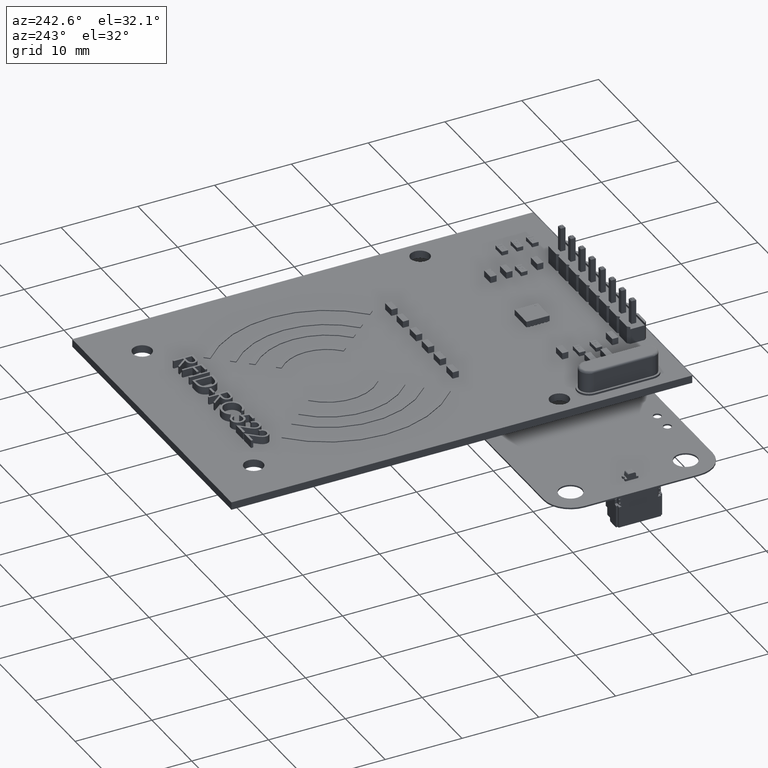
[diagram: clean part render]
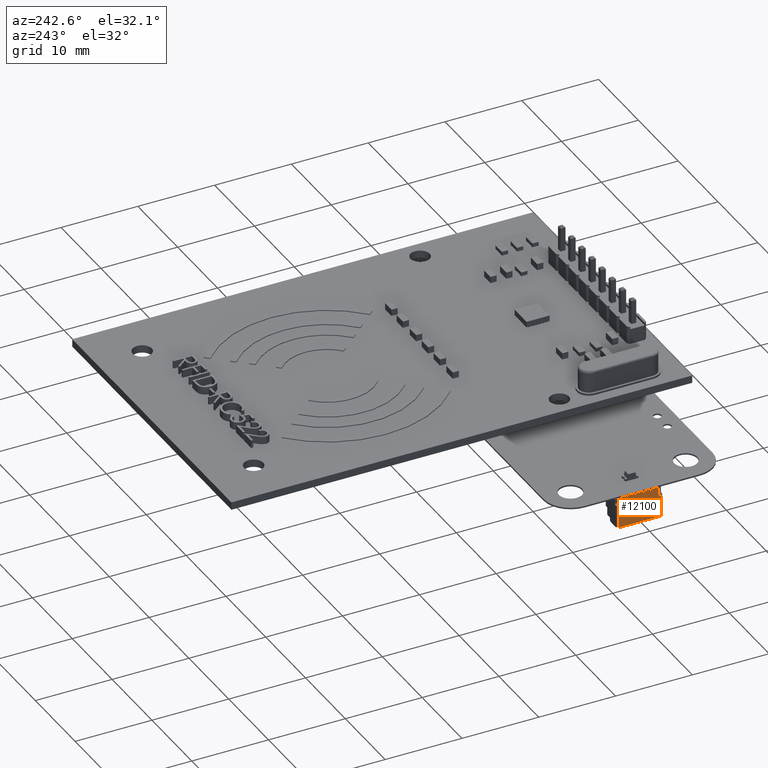
[diagram: same view with one face highlighted and labeled with its STEP entity id]
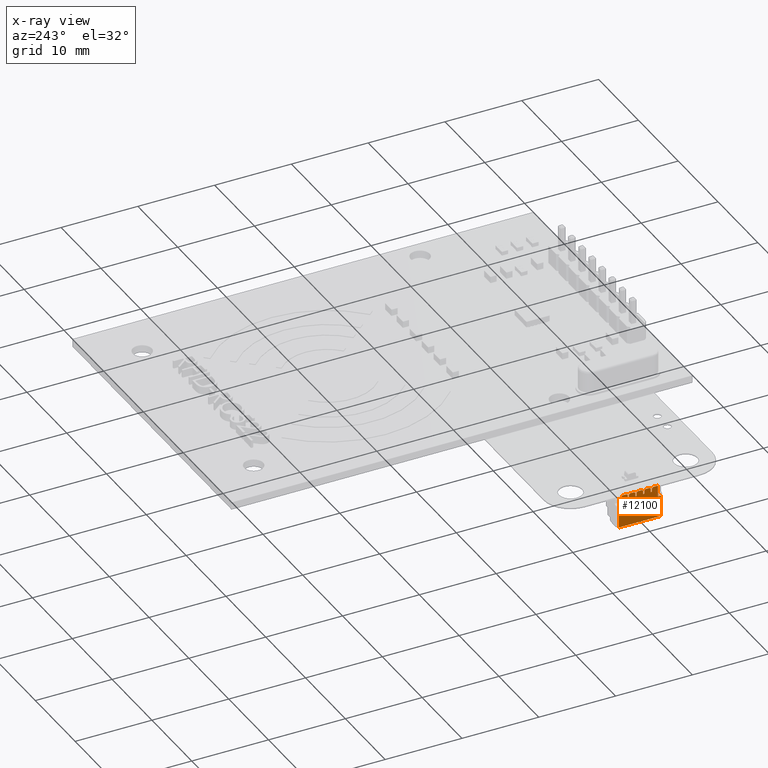
[diagram: x-ray of the same camera — body ghosted, the highlighted face saturated]
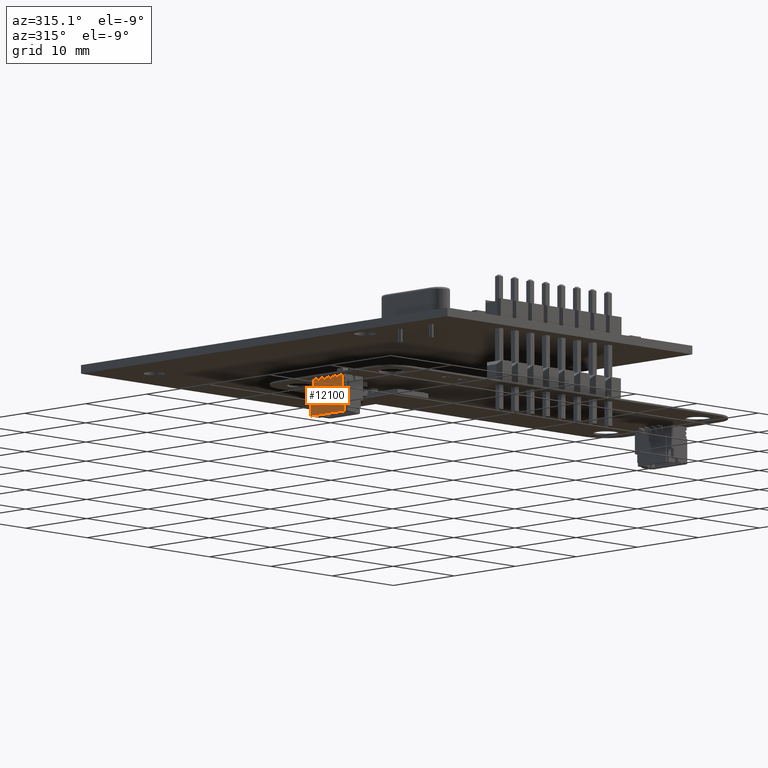
[diagram: same view with one face highlighted and labeled with its STEP entity id]
A machine part, auxiliary view. The second image highlights one B-rep face of the part: STEP entity #12100.
The next image is the same camera in x-ray: the body ghosted, the highlighted face saturated — about 0% of this face is hidden behind the body in this view.
A second angle (auxiliary view) of the same face is appended — the face is thin or edge-on in the first view.
In plain terms, the highlighted planar face has unit normal (1, -0, 0).
Its self-contained STEP definition (entity closure, byte-faithful):
#12100 = ADVANCED_FACE('',(#12101),#12359,.F.);
#12101 = FACE_BOUND('',#12102,.T.);
#12102 = EDGE_LOOP('',(#12103,#12113,#12121,#12129,#12137,#12145,#12153,
    #12161,#12169,#12177,#12185,#12193,#12201,#12209,#12217,#12225,
    #12233,#12241,#12249,#12257,#12265,#12273,#12281,#12289,#12297,
    #12305,#12313,#12321,#12329,#12337,#12345,#12353));
#12103 = ORIENTED_EDGE('',*,*,#12104,.F.);
#12104 = EDGE_CURVE('',#12105,#12107,#12109,.T.);
#12105 = VERTEX_POINT('',#12106);
#12106 = CARTESIAN_POINT('',(2.35,1.588675134595,-1.45));
#12107 = VERTEX_POINT('',#12108);
#12108 = CARTESIAN_POINT('',(2.75,1.588675134595,-1.45));
#12109 = LINE('',#12110,#12111);
#12110 = CARTESIAN_POINT('',(2.5,1.588675134595,-1.45));
#12111 = VECTOR('',#12112,1.);
#12112 = DIRECTION('',(1.,-0.,-0.));
#12113 = ORIENTED_EDGE('',*,*,#12114,.T.);
#12114 = EDGE_CURVE('',#12105,#12115,#12117,.T.);
#12115 = VERTEX_POINT('',#12116);
#12116 = CARTESIAN_POINT('',(2.35,0.1,-1.45));
#12117 = LINE('',#12118,#12119);
#12118 = CARTESIAN_POINT('',(2.35,0.1,-1.45));
#12119 = VECTOR('',#12120,1.);
#12120 = DIRECTION('',(0.,-1.,0.));
#12121 = ORIENTED_EDGE('',*,*,#12122,.T.);
#12122 = EDGE_CURVE('',#12115,#12123,#12125,.T.);
#12123 = VERTEX_POINT('',#12124);
#12124 = CARTESIAN_POINT('',(1.725,1.E-01,-1.45));
#12125 = LINE('',#12126,#12127);
#12126 = CARTESIAN_POINT('',(3.,0.1,-1.45));
#12127 = VECTOR('',#12128,1.);
#12128 = DIRECTION('',(-1.,-0.,-0.));
#12129 = ORIENTED_EDGE('',*,*,#12130,.F.);
#12130 = EDGE_CURVE('',#12131,#12123,#12133,.T.);
#12131 = VERTEX_POINT('',#12132);
#12132 = CARTESIAN_POINT('',(1.575,0.25,-1.45));
#12133 = LINE('',#12134,#12135);
#12134 = CARTESIAN_POINT('',(2.3625,-0.5375,-1.45));
#12135 = VECTOR('',#12136,1.);
#12136 = DIRECTION('',(0.707106781187,-0.707106781187,0.));
#12137 = ORIENTED_EDGE('',*,*,#12138,.F.);
#12138 = EDGE_CURVE('',#12139,#12131,#12141,.T.);
#12139 = VERTEX_POINT('',#12140);
#12140 = CARTESIAN_POINT('',(1.575,0.7,-1.45));
#12141 = LINE('',#12142,#12143);
#12142 = CARTESIAN_POINT('',(1.575,0.1,-1.45));
#12143 = VECTOR('',#12144,1.);
#12144 = DIRECTION('',(0.,-1.,0.));
#12145 = ORIENTED_EDGE('',*,*,#12146,.F.);
#12146 = EDGE_CURVE('',#12147,#12139,#12149,.T.);
#12147 = VERTEX_POINT('',#12148);
#12148 = CARTESIAN_POINT('',(1.425,0.7,-1.45));
#12149 = LINE('',#12150,#12151);
#12150 = CARTESIAN_POINT('',(3.,0.7,-1.45));
#12151 = VECTOR('',#12152,1.);
#12152 = DIRECTION('',(1.,0.,-0.));
#12153 = ORIENTED_EDGE('',*,*,#12154,.T.);
#12154 = EDGE_CURVE('',#12147,#12155,#12157,.T.);
#12155 = VERTEX_POINT('',#12156);
#12156 = CARTESIAN_POINT('',(1.425,0.25,-1.45));
#12157 = LINE('',#12158,#12159);
#12158 = CARTESIAN_POINT('',(1.425,0.1,-1.45));
#12159 = VECTOR('',#12160,1.);
#12160 = DIRECTION('',(0.,-1.,0.));
#12161 = ORIENTED_EDGE('',*,*,#12162,.T.);
#12162 = EDGE_CURVE('',#12155,#12163,#12165,.T.);
#12163 = VERTEX_POINT('',#12164);
#12164 = CARTESIAN_POINT('',(1.275,0.1,-1.45));
#12165 = LINE('',#12166,#12167);
#12166 = CARTESIAN_POINT('',(2.1375,0.9625,-1.45));
#12167 = VECTOR('',#12168,1.);
#12168 = DIRECTION('',(-0.707106781187,-0.707106781187,0.));
#12169 = ORIENTED_EDGE('',*,*,#12170,.T.);
#12170 = EDGE_CURVE('',#12163,#12171,#12173,.T.);
#12171 = VERTEX_POINT('',#12172);
#12172 = CARTESIAN_POINT('',(0.725,1.E-01,-1.45));
#12173 = LINE('',#12174,#12175);
#12174 = CARTESIAN_POINT('',(3.,0.1,-1.45));
#12175 = VECTOR('',#12176,1.);
#12176 = DIRECTION('',(-1.,-0.,-0.));
#12177 = ORIENTED_EDGE('',*,*,#12178,.F.);
#12178 = EDGE_CURVE('',#12179,#12171,#12181,.T.);
#12179 = VERTEX_POINT('',#12180);
#12180 = CARTESIAN_POINT('',(0.575,0.25,-1.45));
#12181 = LINE('',#12182,#12183);
#12182 = CARTESIAN_POINT('',(1.8625,-1.0375,-1.45));
#12183 = VECTOR('',#12184,1.);
#12184 = DIRECTION('',(0.707106781187,-0.707106781187,0.));
#12185 = ORIENTED_EDGE('',*,*,#12186,.F.);
#12186 = EDGE_CURVE('',#12187,#12179,#12189,.T.);
#12187 = VERTEX_POINT('',#12188);
#12188 = CARTESIAN_POINT('',(0.575,0.7,-1.45));
#12189 = LINE('',#12190,#12191);
#12190 = CARTESIAN_POINT('',(0.575,1.E-01,-1.45));
#12191 = VECTOR('',#12192,1.);
#12192 = DIRECTION('',(1.807003620809E-16,-1.,0.));
#12193 = ORIENTED_EDGE('',*,*,#12194,.F.);
#12194 = EDGE_CURVE('',#12195,#12187,#12197,.T.);
#12195 = VERTEX_POINT('',#12196);
#12196 = CARTESIAN_POINT('',(0.425,0.7,-1.45));
#12197 = LINE('',#12198,#12199);
#12198 = CARTESIAN_POINT('',(3.,0.7,-1.45));
#12199 = VECTOR('',#12200,1.);
#12200 = DIRECTION('',(1.,0.,-0.));
#12201 = ORIENTED_EDGE('',*,*,#12202,.T.);
#12202 = EDGE_CURVE('',#12195,#12203,#12205,.T.);
#12203 = VERTEX_POINT('',#12204);
#12204 = CARTESIAN_POINT('',(0.425,0.25,-1.45));
#12205 = LINE('',#12206,#12207);
#12206 = CARTESIAN_POINT('',(0.425,1.E-01,-1.45));
#12207 = VECTOR('',#12208,1.);
#12208 = DIRECTION('',(9.035018104046E-17,-1.,0.));
#12209 = ORIENTED_EDGE('',*,*,#12210,.T.);
#12210 = EDGE_CURVE('',#12203,#12211,#12213,.T.);
#12211 = VERTEX_POINT('',#12212);
#12212 = CARTESIAN_POINT('',(0.275,0.1,-1.45));
#12213 = LINE('',#12214,#12215);
#12214 = CARTESIAN_POINT('',(1.6375,1.4625,-1.45));
#12215 = VECTOR('',#12216,1.);
#12216 = DIRECTION('',(-0.707106781187,-0.707106781187,0.));
#12217 = ORIENTED_EDGE('',*,*,#12218,.T.);
#12218 = EDGE_CURVE('',#12211,#12219,#12221,.T.);
#12219 = VERTEX_POINT('',#12220);
#12220 = CARTESIAN_POINT('',(-0.275,0.1,-1.45));
#12221 = LINE('',#12222,#12223);
#12222 = CARTESIAN_POINT('',(3.,0.1,-1.45));
#12223 = VECTOR('',#12224,1.);
#12224 = DIRECTION('',(-1.,-0.,-0.));
#12225 = ORIENTED_EDGE('',*,*,#12226,.F.);
#12226 = EDGE_CURVE('',#12227,#12219,#12229,.T.);
#12227 = VERTEX_POINT('',#12228);
#12228 = CARTESIAN_POINT('',(-0.425,0.25,-1.45));
#12229 = LINE('',#12230,#12231);
#12230 = CARTESIAN_POINT('',(1.3625,-1.5375,-1.45));
#12231 = VECTOR('',#12232,1.);
#12232 = DIRECTION('',(0.707106781187,-0.707106781187,0.));
#12233 = ORIENTED_EDGE('',*,*,#12234,.F.);
#12234 = EDGE_CURVE('',#12235,#12227,#12237,.T.);
#12235 = VERTEX_POINT('',#12236);
#12236 = CARTESIAN_POINT('',(-0.425,0.7,-1.45));
#12237 = LINE('',#12238,#12239);
#12238 = CARTESIAN_POINT('',(-0.425,1.E-01,-1.45));
#12239 = VECTOR('',#12240,1.);
#12240 = DIRECTION('',(1.807003620809E-16,-1.,0.));
#12241 = ORIENTED_EDGE('',*,*,#12242,.F.);
#12242 = EDGE_CURVE('',#12243,#12235,#12245,.T.);
#12243 = VERTEX_POINT('',#12244);
#12244 = CARTESIAN_POINT('',(-0.575,0.7,-1.45));
#12245 = LINE('',#12246,#12247);
#12246 = CARTESIAN_POINT('',(3.,0.7,-1.45));
#12247 = VECTOR('',#12248,1.);
#12248 = DIRECTION('',(1.,0.,-0.));
#12249 = ORIENTED_EDGE('',*,*,#12250,.T.);
#12250 = EDGE_CURVE('',#12243,#12251,#12253,.T.);
#12251 = VERTEX_POINT('',#12252);
#12252 = CARTESIAN_POINT('',(-0.575,0.25,-1.45));
#12253 = LINE('',#12254,#12255);
#12254 = CARTESIAN_POINT('',(-0.575,0.1,-1.45));
#12255 = VECTOR('',#12256,1.);
#12256 = DIRECTION('',(0.,-1.,0.));
#12257 = ORIENTED_EDGE('',*,*,#12258,.T.);
#12258 = EDGE_CURVE('',#12251,#12259,#12261,.T.);
#12259 = VERTEX_POINT('',#12260);
#12260 = CARTESIAN_POINT('',(-0.725,1.E-01,-1.45));
#12261 = LINE('',#12262,#12263);
#12262 = CARTESIAN_POINT('',(1.1375,1.9625,-1.45));
#12263 = VECTOR('',#12264,1.);
#12264 = DIRECTION('',(-0.707106781187,-0.707106781187,0.));
#12265 = ORIENTED_EDGE('',*,*,#12266,.T.);
#12266 = EDGE_CURVE('',#12259,#12267,#12269,.T.);
#12267 = VERTEX_POINT('',#12268);
#12268 = CARTESIAN_POINT('',(-1.275,0.1,-1.45));
#12269 = LINE('',#12270,#12271);
#12270 = CARTESIAN_POINT('',(3.,0.1,-1.45));
#12271 = VECTOR('',#12272,1.);
#12272 = DIRECTION('',(-1.,-0.,-0.));
#12273 = ORIENTED_EDGE('',*,*,#12274,.F.);
#12274 = EDGE_CURVE('',#12275,#12267,#12277,.T.);
#12275 = VERTEX_POINT('',#12276);
#12276 = CARTESIAN_POINT('',(-1.425,0.25,-1.45));
#12277 = LINE('',#12278,#12279);
#12278 = CARTESIAN_POINT('',(0.8625,-2.0375,-1.45));
#12279 = VECTOR('',#12280,1.);
#12280 = DIRECTION('',(0.707106781187,-0.707106781187,0.));
#12281 = ORIENTED_EDGE('',*,*,#12282,.F.);
#12282 = EDGE_CURVE('',#12283,#12275,#12285,.T.);
#12283 = VERTEX_POINT('',#12284);
#12284 = CARTESIAN_POINT('',(-1.425,0.7,-1.45));
#12285 = LINE('',#12286,#12287);
#12286 = CARTESIAN_POINT('',(-1.425,0.1,-1.45));
#12287 = VECTOR('',#12288,1.);
#12288 = DIRECTION('',(0.,-1.,0.));
#12289 = ORIENTED_EDGE('',*,*,#12290,.F.);
#12290 = EDGE_CURVE('',#12291,#12283,#12293,.T.);
#12291 = VERTEX_POINT('',#12292);
#12292 = CARTESIAN_POINT('',(-1.575,0.7,-1.45));
#12293 = LINE('',#12294,#12295);
#12294 = CARTESIAN_POINT('',(3.,0.7,-1.45));
#12295 = VECTOR('',#12296,1.);
#12296 = DIRECTION('',(1.,0.,-0.));
#12297 = ORIENTED_EDGE('',*,*,#12298,.T.);
#12298 = EDGE_CURVE('',#12291,#12299,#12301,.T.);
#12299 = VERTEX_POINT('',#12300);
#12300 = CARTESIAN_POINT('',(-1.575,0.25,-1.45));
#12301 = LINE('',#12302,#12303);
#12302 = CARTESIAN_POINT('',(-1.575,0.1,-1.45));
#12303 = VECTOR('',#12304,1.);
#12304 = DIRECTION('',(0.,-1.,0.));
#12305 = ORIENTED_EDGE('',*,*,#12306,.T.);
#12306 = EDGE_CURVE('',#12299,#12307,#12309,.T.);
#12307 = VERTEX_POINT('',#12308);
#12308 = CARTESIAN_POINT('',(-1.725,1.E-01,-1.45));
#12309 = LINE('',#12310,#12311);
#12310 = CARTESIAN_POINT('',(0.6375,2.4625,-1.45));
#12311 = VECTOR('',#12312,1.);
#12312 = DIRECTION('',(-0.707106781187,-0.707106781187,0.));
#12313 = ORIENTED_EDGE('',*,*,#12314,.T.);
#12314 = EDGE_CURVE('',#12307,#12315,#12317,.T.);
#12315 = VERTEX_POINT('',#12316);
#12316 = CARTESIAN_POINT('',(-2.35,0.1,-1.45));
#12317 = LINE('',#12318,#12319);
#12318 = CARTESIAN_POINT('',(3.,0.1,-1.45));
#12319 = VECTOR('',#12320,1.);
#12320 = DIRECTION('',(-1.,-0.,-0.));
#12321 = ORIENTED_EDGE('',*,*,#12322,.T.);
#12322 = EDGE_CURVE('',#12315,#12323,#12325,.T.);
#12323 = VERTEX_POINT('',#12324);
#12324 = CARTESIAN_POINT('',(-2.35,1.588675134595,-1.45));
#12325 = LINE('',#12326,#12327);
#12326 = CARTESIAN_POINT('',(-2.35,1.588675134595,-1.45));
#12327 = VECTOR('',#12328,1.);
#12328 = DIRECTION('',(0.,1.,0.));
#12329 = ORIENTED_EDGE('',*,*,#12330,.T.);
#12330 = EDGE_CURVE('',#12323,#12331,#12333,.T.);
#12331 = VERTEX_POINT('',#12332);
#12332 = CARTESIAN_POINT('',(-2.75,1.588675134595,-1.45));
#12333 = LINE('',#12334,#12335);
#12334 = CARTESIAN_POINT('',(-2.5,1.588675134595,-1.45));
#12335 = VECTOR('',#12336,1.);
#12336 = DIRECTION('',(-1.,-0.,-0.));
#12337 = ORIENTED_EDGE('',*,*,#12338,.T.);
#12338 = EDGE_CURVE('',#12331,#12339,#12341,.T.);
#12339 = VERTEX_POINT('',#12340);
#12340 = CARTESIAN_POINT('',(-2.75,4.35,-1.45));
#12341 = LINE('',#12342,#12343);
#12342 = CARTESIAN_POINT('',(-2.75,0.,-1.45));
#12343 = VECTOR('',#12344,1.);
#12344 = DIRECTION('',(0.,1.,0.));
#12345 = ORIENTED_EDGE('',*,*,#12346,.F.);
#12346 = EDGE_CURVE('',#12347,#12339,#12349,.T.);
#12347 = VERTEX_POINT('',#12348);
#12348 = CARTESIAN_POINT('',(2.75,4.35,-1.45));
#12349 = LINE('',#12350,#12351);
#12350 = CARTESIAN_POINT('',(3.,4.35,-1.45));
#12351 = VECTOR('',#12352,1.);
#12352 = DIRECTION('',(-1.,-0.,-0.));
#12353 = ORIENTED_EDGE('',*,*,#12354,.F.);
#12354 = EDGE_CURVE('',#12107,#12347,#12355,.T.);
#12355 = LINE('',#12356,#12357);
#12356 = CARTESIAN_POINT('',(2.75,0.,-1.45));
#12357 = VECTOR('',#12358,1.);
#12358 = DIRECTION('',(0.,1.,0.));
#12359 = PLANE('',#12360);
#12360 = AXIS2_PLACEMENT_3D('',#12361,#12362,#12363);
#12361 = CARTESIAN_POINT('',(3.,0.1,-1.45));
#12362 = DIRECTION('',(0.,0.,1.));
#12363 = DIRECTION('',(1.,0.,-0.));